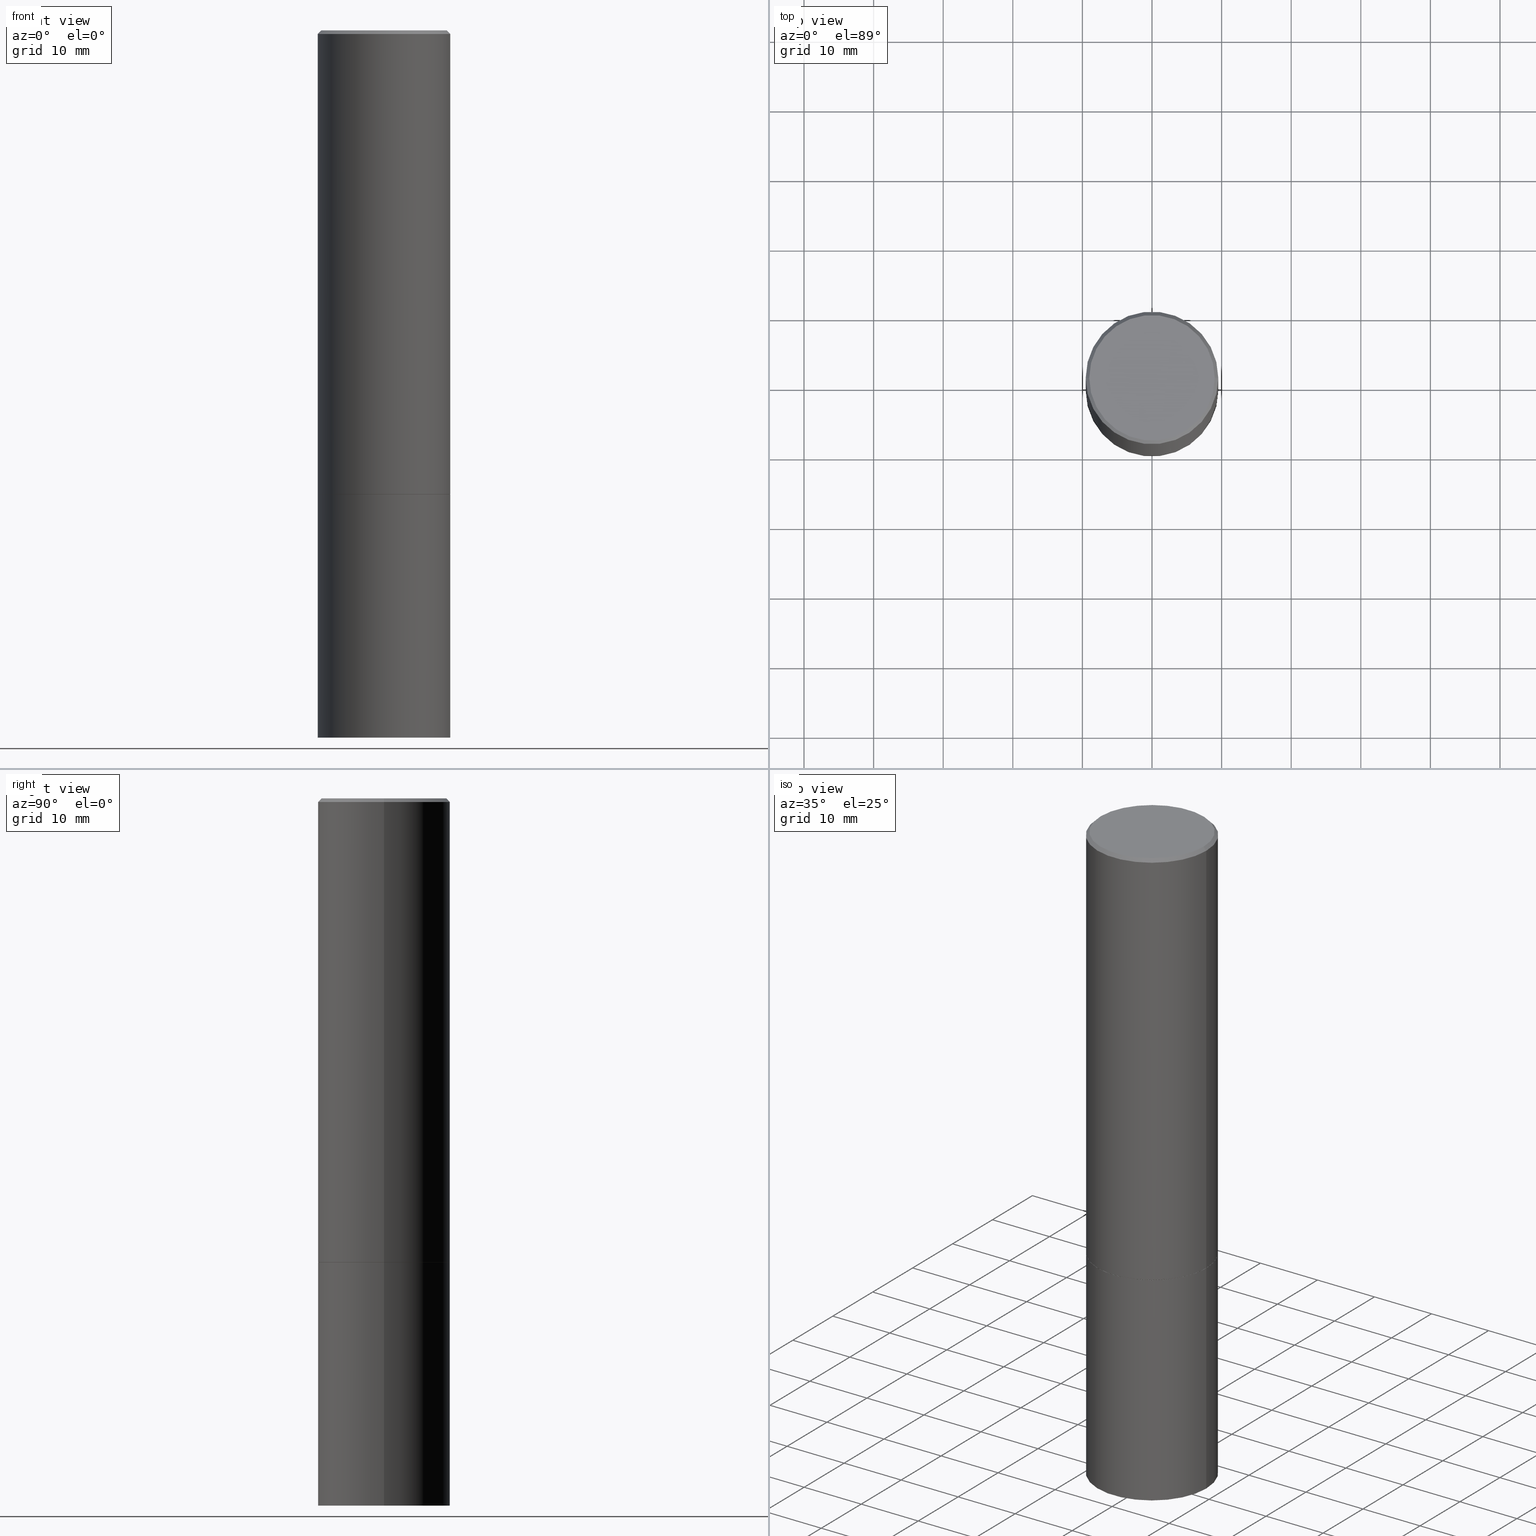
[diagram: canonical four-view strip — front | top / right | iso, engineering-drawing reading convention]
A machine part, canonical four-view strip (front | top / right | iso — engineering-drawing reading convention). The complete STEP part file that produces these views, byte-faithful:
ISO-10303-21;
HEADER;
FILE_DESCRIPTION (( 'STEP AP203' ),
    '1' );
FILE_NAME ('72984.STEP',
    '2024-02-29T06:41:33',
    ( '' ),
    ( '' ),
    'SwSTEP 2.0',
    'SolidWorks 2023',
    '' );
FILE_SCHEMA (( 'CONFIG_CONTROL_DESIGN' ));
ENDSEC;

DATA;
#1 = PERSON_AND_ORGANIZATION ( #284, #337 ) ;
#2 = AXIS2_PLACEMENT_3D ( 'NONE', #222, #251, #248 ) ;
#3 = EDGE_LOOP ( 'NONE', ( #66, #90, #326, #91 ) ) ;
#4 = VECTOR ( 'NONE', #7, 39.37007874015748143 ) ;
#5 = ORIENTED_EDGE ( 'NONE', *, *, #27, .T. ) ;
#6 = CARTESIAN_POINT ( 'NONE',  ( 6.416910147429799085E-29, -9.161647033124413605E-15, -2.624000000000000110 ) ) ;
#7 = DIRECTION ( 'NONE',  ( -2.445468806185136877E-29, 3.491481338843145188E-15, 1.000000000000000000 ) ) ;
#8 = ORIENTED_EDGE ( 'NONE', *, *, #51, .F. ) ;
#9 = SHAPE_DEFINITION_REPRESENTATION ( #25, #156 ) ;
#10 = EDGE_CURVE ( 'NONE', #213, #320, #273, .T. ) ;
#11 = ORIENTED_EDGE ( 'NONE', *, *, #357, .F. ) ;
#12 = PERSON_AND_ORGANIZATION ( #284, #337 ) ;
#13 = ORIENTED_EDGE ( 'NONE', *, *, #36, .T. ) ;
#14 = CIRCLE ( 'NONE', #211, 0.3750000000000000555 ) ;
#15 = FACE_OUTER_BOUND ( 'NONE', #171, .T. ) ;
#16 = APPROVAL_STATUS ( 'not_yet_approved' ) ;
#17 = APPLICATION_PROTOCOL_DEFINITION ( 'international standard', 'config_control_design', 1994, #354 ) ;
#18 = CARTESIAN_POINT ( 'NONE',  ( -0.3749999999999998335, 2.664535259100374514E-15, -1.844600658845588757E-29 ) ) ;
#19 =( NAMED_UNIT ( * ) PLANE_ANGLE_UNIT ( ) SI_UNIT ( $, .RADIAN. ) );
#20 = CARTESIAN_POINT ( 'NONE',  ( 6.419355616235982445E-29, -9.165138514463255034E-15, -2.624999999999999556 ) ) ;
#21 = CC_DESIGN_APPROVAL ( #203, ( #269 ) ) ;
#22 = DIRECTION ( 'NONE',  ( 1.000000000000000000, -6.982962677686266711E-15, 0.000000000000000000 ) ) ;
#23 = APPROVAL_STATUS ( 'not_yet_approved' ) ;
#24 = FACE_OUTER_BOUND ( 'NONE', #257, .T. ) ;
#25 = PRODUCT_DEFINITION_SHAPE ( 'NONE', 'NONE',  #269 ) ;
#26 = COORDINATED_UNIVERSAL_TIME_OFFSET ( 5, 0, .BEHIND. ) ;
#27 = EDGE_CURVE ( 'NONE', #194, #169, #46, .T. ) ;
#28 = LOCAL_TIME ( 1, 41, 33.00000000000000000, #26 ) ;
#29 = LINE ( 'NONE', #133, #301 ) ;
#30 = DIRECTION ( 'NONE',  ( 1.000000000000000000, -6.982962677686266711E-15, 0.000000000000000000 ) ) ;
#31 = ORIENTED_EDGE ( 'NONE', *, *, #255, .F. ) ;
#32 = CARTESIAN_POINT ( 'NONE',  ( 0.3750000000000000555, -1.658453635950493392E-14, -4.000000000000000000 ) ) ;
#33 = CARTESIAN_POINT ( 'NONE',  ( -0.3750000000000000555, -8.900996675817542197E-15, -4.000000000000000000 ) ) ;
#34 = VERTEX_POINT ( 'NONE', #265 ) ;
#35 = DIRECTION ( 'NONE',  ( -2.445468806185136597E-29, 3.491481338843145583E-15, 1.000000000000000000 ) ) ;
#36 = EDGE_CURVE ( 'NONE', #353, #83, #238, .T. ) ;
#37 = ORIENTED_EDGE ( 'NONE', *, *, #347, .T. ) ;
#38 = CARTESIAN_POINT ( 'NONE',  ( 0.000000000000000000, 0.000000000000000000, 0.000000000000000000 ) ) ;
#39 = EDGE_LOOP ( 'NONE', ( #314, #290, #135, #334 ) ) ;
#40 = AXIS2_PLACEMENT_3D ( 'NONE', #79, #208, #147 ) ;
#41 = ORIENTED_EDGE ( 'NONE', *, *, #311, .F. ) ;
#42 = FACE_OUTER_BOUND ( 'NONE', #138, .T. ) ;
#43 = ORIENTED_EDGE ( 'NONE', *, *, #27, .F. ) ;
#44 = CARTESIAN_POINT ( 'NONE',  ( -0.3549999999999995381, 2.513866563967052703E-15, 1.280553747028377567E-17 ) ) ;
#45 = DIRECTION ( 'NONE',  ( -2.445468806185136877E-29, 3.491481338843145188E-15, 1.000000000000000000 ) ) ;
#46 = CIRCLE ( 'NONE', #277, 0.3750000000000000555 ) ;
#47 = EDGE_CURVE ( 'NONE', #163, #345, #122, .T. ) ;
#48 = AXIS2_PLACEMENT_3D ( 'NONE', #6, #111, #231 ) ;
#49 = DIRECTION ( 'NONE',  ( 0.7071067811868130271, -2.468850131085038979E-15, 0.7071067811862817853 ) ) ;
#50 = CALENDAR_DATE ( 2024, 29, 2 ) ;
#51 = EDGE_CURVE ( 'NONE', #142, #351, #299, .T. ) ;
#52 = CARTESIAN_POINT ( 'NONE',  ( 9.781875224740546387E-29, -1.396592535537258233E-14, -4.000000000000000000 ) ) ;
#53 = DIRECTION ( 'NONE',  ( -1.000000000000000000, 6.982962677686265922E-15, -4.876176775795935793E-29 ) ) ;
#54 = CARTESIAN_POINT ( 'NONE',  ( 6.419355616235982445E-29, -9.165138514463255034E-15, -2.624999999999999556 ) ) ;
#55 = AXIS2_PLACEMENT_3D ( 'NONE', #361, #99, #153 ) ;
#56 = LOCAL_TIME ( 1, 41, 33.00000000000000000, #246 ) ;
#57 = EDGE_LOOP ( 'NONE', ( #8, #61, #191, #162 ) ) ;
#58 = DIRECTION ( 'NONE',  ( 0.7071067811865469066, -7.319954787623254468E-15, -0.7071067811865482389 ) ) ;
#59 = CALENDAR_DATE ( 2024, 29, 2 ) ;
#60 = ORIENTED_EDGE ( 'NONE', *, *, #342, .F. ) ;
#61 = ORIENTED_EDGE ( 'NONE', *, *, #327, .T. ) ;
#62 = CARTESIAN_POINT ( 'NONE',  ( 6.416910147429799085E-29, -9.161647033124413605E-15, -2.624000000000000110 ) ) ;
#63 = CLOSED_SHELL ( 'NONE', ( #267, #279, #228, #214 ) ) ;
#64 = APPROVAL_DATE_TIME ( #205, #274 ) ;
#65 = EDGE_LOOP ( 'NONE', ( #88, #112, #352, #264 ) ) ;
#66 = ORIENTED_EDGE ( 'NONE', *, *, #357, .T. ) ;
#67 = CARTESIAN_POINT ( 'NONE',  ( 6.419355616235982445E-29, -9.165138514463255034E-15, -2.624999999999999556 ) ) ;
#68 = ADVANCED_FACE ( 'NONE', ( #151 ), #143, .T. ) ;
#69 =( NAMED_UNIT ( * ) SI_UNIT ( $, .STERADIAN. ) SOLID_ANGLE_UNIT ( ) );
#70 = LINE ( 'NONE', #356, #80 ) ;
#71 = CLOSED_SHELL ( 'NONE', ( #78, #359, #155, #68, #160, #198, #165, #117 ) ) ;
#72 = CARTESIAN_POINT ( 'NONE',  ( 9.781875224740546387E-29, -1.396592535537258233E-14, -4.000000000000000000 ) ) ;
#73 = CC_DESIGN_PERSON_AND_ORGANIZATION_ASSIGNMENT ( #1, #225, ( #193 ) ) ;
#74 = AXIS2_PLACEMENT_3D ( 'NONE', #346, #35, #189 ) ;
#75 = LINE ( 'NONE', #362, #4 ) ;
#76 = DIRECTION ( 'NONE',  ( -2.445468806185136597E-29, 3.491481338843145583E-15, 1.000000000000000000 ) ) ;
#77 = CARTESIAN_POINT ( 'NONE',  ( 6.419355616235982445E-29, -9.165138514463255034E-15, -2.624999999999999556 ) ) ;
#78 = ADVANCED_FACE ( 'NONE', ( #15 ), #180, .T. ) ;
#79 = CARTESIAN_POINT ( 'NONE',  ( 0.000000000000000000, 0.000000000000000000, 0.000000000000000000 ) ) ;
#80 = VECTOR ( 'NONE', #242, 39.37007874015748854 ) ;
#81 = APPROVAL_PERSON_ORGANIZATION ( #121, #340, #219 ) ;
#82 = LOCAL_TIME ( 1, 41, 33.00000000000000000, #316 ) ;
#83 = VERTEX_POINT ( 'NONE', #294 ) ;
#84 = AXIS2_PLACEMENT_3D ( 'NONE', #20, #182, #119 ) ;
#85 = PERSON_AND_ORGANIZATION_ROLE ( 'classification_officer' ) ;
#86 = VECTOR ( 'NONE', #199, 39.37007874015748143 ) ;
#87 = ORIENTED_EDGE ( 'NONE', *, *, #195, .T. ) ;
#88 = ORIENTED_EDGE ( 'NONE', *, *, #327, .F. ) ;
#89 = PLANE ( 'NONE',  #322 ) ;
#90 = ORIENTED_EDGE ( 'NONE', *, *, #255, .T. ) ;
#91 = ORIENTED_EDGE ( 'NONE', *, *, #195, .F. ) ;
#92 = CIRCLE ( 'NONE', #48, 0.3750000000000000555 ) ;
#93 = LENGTH_MEASURE_WITH_UNIT ( LENGTH_MEASURE( 0.02539999999999999897 ), #149 );
#94 = DIRECTION ( 'NONE',  ( -2.445468806185136597E-29, 3.491481338843145583E-15, 1.000000000000000000 ) ) ;
#95 = DIRECTION ( 'NONE',  ( -2.445468806185136597E-29, 3.491481338843145583E-15, 1.000000000000000000 ) ) ;
#96 = DIRECTION ( 'NONE',  ( 1.000000000000000000, -6.982962677686266711E-15, 4.876231632511994349E-29 ) ) ;
#97 = LOCAL_TIME ( 1, 41, 33.00000000000000000, #167 ) ;
#98 = CARTESIAN_POINT ( 'NONE',  ( -3.131554243005659264E-46, 4.471029511141341874E-32, 1.280553747030123384E-17 ) ) ;
#99 = DIRECTION ( 'NONE',  ( 2.438088387897960049E-29, -3.491481338843145188E-15, -1.000000000000000000 ) ) ;
#100 = CC_DESIGN_DATE_AND_TIME_ASSIGNMENT ( #318, #140, ( #120 ) ) ;
#101 = APPROVAL_ROLE ( '' ) ;
#102 =( GEOMETRIC_REPRESENTATION_CONTEXT ( 3 ) GLOBAL_UNCERTAINTY_ASSIGNED_CONTEXT ( ( #237 ) ) GLOBAL_UNIT_ASSIGNED_CONTEXT ( ( #325, #19, #69 ) ) REPRESENTATION_CONTEXT ( 'NONE', 'WORKASPACE' ) );
#103 = CALENDAR_DATE ( 2024, 29, 2 ) ;
#104 = DIMENSIONAL_EXPONENTS ( 1.000000000000000000, 0.000000000000000000, 0.000000000000000000, 0.000000000000000000, 0.000000000000000000, 0.000000000000000000, 0.000000000000000000 ) ;
#105 = EDGE_CURVE ( 'NONE', #34, #353, #70, .T. ) ;
#106 = APPLICATION_CONTEXT ( 'configuration controlled 3d designs of mechanical parts and assemblies' ) ;
#107 = ORIENTED_EDGE ( 'NONE', *, *, #342, .T. ) ;
#108 = PLANE ( 'NONE',  #2 ) ;
#109 = CC_DESIGN_APPROVAL ( #274, ( #120 ) ) ;
#110 = ORIENTED_EDGE ( 'NONE', *, *, #36, .F. ) ;
#111 = DIRECTION ( 'NONE',  ( -2.445468806185136597E-29, 3.491481338843145583E-15, 1.000000000000000000 ) ) ;
#112 = ORIENTED_EDGE ( 'NONE', *, *, #186, .F. ) ;
#113 = EDGE_LOOP ( 'NONE', ( #11, #226 ) ) ;
#114 = CARTESIAN_POINT ( 'NONE',  ( 4.890937612370294178E-31, -6.982962677686321191E-17, -0.02000000000000008715 ) ) ;
#115 = CC_DESIGN_APPROVAL ( #340, ( #193 ) ) ;
#116 = DIRECTION ( 'NONE',  ( -1.000000000000000000, 6.982962677686266711E-15, 0.000000000000000000 ) ) ;
#117 = ADVANCED_FACE ( 'NONE', ( #268 ), #172, .F. ) ;
#118 = CIRCLE ( 'NONE', #166, 0.3750000000000000555 ) ;
#119 = DIRECTION ( 'NONE',  ( 1.000000000000000000, -6.982962677686265922E-15, 4.876176775795935793E-29 ) ) ;
#120 = SECURITY_CLASSIFICATION ( '', '', #343 ) ;
#121 = PERSON_AND_ORGANIZATION ( #284, #337 ) ;
#122 = LINE ( 'NONE', #234, #247 ) ;
#123 = CC_DESIGN_DATE_AND_TIME_ASSIGNMENT ( #218, #127, ( #269 ) ) ;
#124 = EDGE_CURVE ( 'NONE', #351, #83, #298, .T. ) ;
#125 = CIRCLE ( 'NONE', #154, 0.3549999999999995381 ) ;
#126 = CIRCLE ( 'NONE', #363, 0.3750000000000000555 ) ;
#127 = DATE_TIME_ROLE ( 'creation_date' ) ;
#128 = COORDINATED_UNIVERSAL_TIME_OFFSET ( 5, 0, .BEHIND. ) ;
#129 = CARTESIAN_POINT ( 'NONE',  ( 4.890937612370294178E-31, -6.982962677686321191E-17, -0.02000000000000008715 ) ) ;
#130 = CC_DESIGN_PERSON_AND_ORGANIZATION_ASSIGNMENT ( #216, #181, ( #269 ) ) ;
#131 = AXIS2_PLACEMENT_3D ( 'NONE', #129, #249, #184 ) ;
#132 = PERSON_AND_ORGANIZATION ( #284, #337 ) ;
#133 = CARTESIAN_POINT ( 'NONE',  ( 0.3749999999999998335, -2.618611004132348439E-15, 1.828566290923475082E-29 ) ) ;
#134 = ORIENTED_EDGE ( 'NONE', *, *, #51, .T. ) ;
#135 = ORIENTED_EDGE ( 'NONE', *, *, #47, .T. ) ;
#136 = CARTESIAN_POINT ( 'NONE',  ( 0.3749999999999996114, -2.642516375941185268E-15, -0.02000000000000008715 ) ) ;
#137 = APPROVAL_PERSON_ORGANIZATION ( #185, #203, #101 ) ;
#138 = EDGE_LOOP ( 'NONE', ( #110, #37, #254, #223 ) ) ;
#139 = DIRECTION ( 'NONE',  ( -2.445468806185136597E-29, 3.491481338843145583E-15, 1.000000000000000000 ) ) ;
#140 = DATE_TIME_ROLE ( 'classification_date' ) ;
#141 = ORIENTED_EDGE ( 'NONE', *, *, #186, .T. ) ;
#142 = VERTEX_POINT ( 'NONE', #174 ) ;
#143 = CONICAL_SURFACE ( 'NONE', #319, 0.3749999999999996114, 0.7853981633974473908 ) ;
#144 = APPROVAL_ROLE ( '' ) ;
#145 = DIRECTION ( 'NONE',  ( 1.000000000000000000, 0.000000000000000000, 0.000000000000000000 ) ) ;
#146 = DIRECTION ( 'NONE',  ( 1.000000000000000000, -6.982962677686266711E-15, 0.000000000000000000 ) ) ;
#147 = DIRECTION ( 'NONE',  ( 1.000000000000000000, -6.982962677686265922E-15, 4.876176775795935793E-29 ) ) ;
#148 = DIRECTION ( 'NONE',  ( -2.445468806185136597E-29, 3.491481338843145583E-15, 1.000000000000000000 ) ) ;
#149 =( LENGTH_UNIT ( ) NAMED_UNIT ( * ) SI_UNIT ( $, .METRE. ) );
#150 = PLANE ( 'NONE',  #84 ) ;
#151 = FACE_OUTER_BOUND ( 'NONE', #65, .T. ) ;
#152 = DIRECTION ( 'NONE',  ( -2.445468806185136597E-29, 3.491481338843145583E-15, 1.000000000000000000 ) ) ;
#153 = DIRECTION ( 'NONE',  ( -1.000000000000000000, 6.982962677686265922E-15, -4.876176775795935793E-29 ) ) ;
#154 = AXIS2_PLACEMENT_3D ( 'NONE', #98, #360, #338 ) ;
#155 = ADVANCED_FACE ( 'NONE', ( #177 ), #190, .T. ) ;
#156 = ADVANCED_BREP_SHAPE_REPRESENTATION ( '72984', ( #200, #350, #183 ), #102 ) ;
#157 = FACE_OUTER_BOUND ( 'NONE', #3, .T. ) ;
#158 = DIRECTION ( 'NONE',  ( -2.445468806185136597E-29, 3.491481338843145583E-15, 1.000000000000000000 ) ) ;
#159 = APPROVAL_PERSON_ORGANIZATION ( #12, #274, #144 ) ;
#160 = ADVANCED_FACE ( 'NONE', ( #42 ), #235, .T. ) ;
#161 = ORIENTED_EDGE ( 'NONE', *, *, #47, .F. ) ;
#162 = ORIENTED_EDGE ( 'NONE', *, *, #124, .F. ) ;
#163 = VERTEX_POINT ( 'NONE', #212 ) ;
#164 = LINE ( 'NONE', #227, #86 ) ;
#165 = ADVANCED_FACE ( 'NONE', ( #297 ), #150, .F. ) ;
#166 = AXIS2_PLACEMENT_3D ( 'NONE', #324, #333, #309 ) ;
#167 = COORDINATED_UNIVERSAL_TIME_OFFSET ( 5, 0, .BEHIND. ) ;
#168 = LOCAL_TIME ( 1, 41, 33.00000000000000000, #128 ) ;
#169 = VERTEX_POINT ( 'NONE', #240 ) ;
#170 = CALENDAR_DATE ( 2024, 29, 2 ) ;
#171 = EDGE_LOOP ( 'NONE', ( #323, #230, #60, #161 ) ) ;
#172 = PLANE ( 'NONE',  #55 ) ;
#173 = MECHANICAL_CONTEXT ( 'NONE', #354, 'mechanical' ) ;
#174 = CARTESIAN_POINT ( 'NONE',  ( 0.3549999999999995381, -2.538996582575037893E-15, 1.280553747031877983E-17 ) ) ;
#175 = CARTESIAN_POINT ( 'NONE',  ( 0.3749999999999996114, -2.642516375941185268E-15, -0.02000000000000008715 ) ) ;
#176 = PERSON_AND_ORGANIZATION_ROLE ( 'design_owner' ) ;
#177 = FACE_OUTER_BOUND ( 'NONE', #57, .T. ) ;
#178 = FACE_OUTER_BOUND ( 'NONE', #202, .T. ) ;
#179 = DIRECTION ( 'NONE',  ( 2.445468806185136597E-29, -3.491481338843145583E-15, -1.000000000000000000 ) ) ;
#180 = CONICAL_SURFACE ( 'NONE', #220, 0.3739999999999999991, 0.7853981633978239785 ) ;
#181 = PERSON_AND_ORGANIZATION_ROLE ( 'creator' ) ;
#182 = DIRECTION ( 'NONE',  ( -2.438088387897960049E-29, 3.491481338843145188E-15, 1.000000000000000000 ) ) ;
#183 = AXIS2_PLACEMENT_3D ( 'NONE', #38, #210, #145 ) ;
#184 = DIRECTION ( 'NONE',  ( 1.000000000000000000, -6.982962677686266711E-15, 0.000000000000000000 ) ) ;
#185 = PERSON_AND_ORGANIZATION ( #284, #337 ) ;
#186 = EDGE_CURVE ( 'NONE', #351, #142, #125, .T. ) ;
#187 = CONICAL_SURFACE ( 'NONE', #285, 0.3739999999999999991, 0.7853981633978239785 ) ;
#188 = DIRECTION ( 'NONE',  ( 1.000000000000000000, -6.982962677686265922E-15, 4.876176775795935793E-29 ) ) ;
#189 = DIRECTION ( 'NONE',  ( 1.000000000000000000, -6.982962677686265922E-15, 4.876176775795935793E-29 ) ) ;
#190 = CONICAL_SURFACE ( 'NONE', #239, 0.3749999999999996114, 0.7853981633974473908 ) ;
#191 = ORIENTED_EDGE ( 'NONE', *, *, #365, .T. ) ;
#192 = CARTESIAN_POINT ( 'NONE',  ( 6.419355616235982445E-29, -9.165138514463255034E-15, -2.624999999999999556 ) ) ;
#193 = PRODUCT_DEFINITION_FORMATION_WITH_SPECIFIED_SOURCE ( 'ANY', '', #310, .NOT_KNOWN. ) ;
#194 = VERTEX_POINT ( 'NONE', #229 ) ;
#195 = EDGE_CURVE ( 'NONE', #320, #169, #75, .T. ) ;
#196 = ORIENTED_EDGE ( 'NONE', *, *, #365, .F. ) ;
#197 = LINE ( 'NONE', #136, #293 ) ;
#198 = ADVANCED_FACE ( 'NONE', ( #358 ), #187, .T. ) ;
#199 = DIRECTION ( 'NONE',  ( -2.445468806185136877E-29, 3.491481338843145188E-15, 1.000000000000000000 ) ) ;
#200 = MANIFOLD_SOLID_BREP ( 'Body-Move/Copy2[1]', #63 ) ;
#201 = CIRCLE ( 'NONE', #261, 0.3749999999999996114 ) ;
#202 = EDGE_LOOP ( 'NONE', ( #31, #253, #87, #43 ) ) ;
#203 = APPROVAL ( #23, 'UNSPECIFIED' ) ;
#204 = DIRECTION ( 'NONE',  ( 1.000000000000000000, -6.982962677686265133E-15, 0.000000000000000000 ) ) ;
#205 = DATE_AND_TIME ( #170, #97 ) ;
#206 = DESIGN_CONTEXT ( 'detailed design', #106, 'design' ) ;
#207 = DIRECTION ( 'NONE',  ( -2.445468806185136597E-29, 3.491481338843145583E-15, 1.000000000000000000 ) ) ;
#208 = DIRECTION ( 'NONE',  ( -2.445468806185136597E-29, 3.491481338843145583E-15, 1.000000000000000000 ) ) ;
#209 = DIRECTION ( 'NONE',  ( -2.445468806185136597E-29, 3.491481338843145583E-15, 1.000000000000000000 ) ) ;
#210 = DIRECTION ( 'NONE',  ( 0.000000000000000000, 0.000000000000000000, 1.000000000000000000 ) ) ;
#211 = AXIS2_PLACEMENT_3D ( 'NONE', #62, #209, #329 ) ;
#212 = CARTESIAN_POINT ( 'NONE',  ( 0.3739999999999999991, -1.177676655591791904E-14, -2.624999999999999556 ) ) ;
#213 = VERTEX_POINT ( 'NONE', #33 ) ;
#214 = ADVANCED_FACE ( 'NONE', ( #178 ), #305, .T. ) ;
#215 = CARTESIAN_POINT ( 'NONE',  ( -0.3749999999999996114, 2.548781377355483957E-15, -0.02000000000000008715 ) ) ;
#216 = PERSON_AND_ORGANIZATION ( #284, #337 ) ;
#217 = EDGE_CURVE ( 'NONE', #169, #194, #118, .T. ) ;
#218 = DATE_AND_TIME ( #103, #28 ) ;
#219 = APPROVAL_ROLE ( '' ) ;
#220 = AXIS2_PLACEMENT_3D ( 'NONE', #77, #94, #204 ) ;
#221 = PERSON_AND_ORGANIZATION_ROLE ( 'design_supplier' ) ;
#222 = CARTESIAN_POINT ( 'NONE',  ( 2.618611004132414309E-15, 0.3749999999999908962, -2.625000000000000444 ) ) ;
#223 = ORIENTED_EDGE ( 'NONE', *, *, #272, .F. ) ;
#224 = DIRECTION ( 'NONE',  ( 2.438088387897960049E-29, -3.491481338843145188E-15, -1.000000000000000000 ) ) ;
#225 = PERSON_AND_ORGANIZATION_ROLE ( 'creator' ) ;
#226 = ORIENTED_EDGE ( 'NONE', *, *, #10, .F. ) ;
#227 = CARTESIAN_POINT ( 'NONE',  ( -0.3750000000000000555, 2.664535259100376091E-15, -1.844600658845589598E-29 ) ) ;
#228 = ADVANCED_FACE ( 'NONE', ( #287 ), #108, .F. ) ;
#229 = CARTESIAN_POINT ( 'NONE',  ( -0.3750000000000000555, -8.900996675817542197E-15, -2.624999999999999556 ) ) ;
#230 = ORIENTED_EDGE ( 'NONE', *, *, #105, .T. ) ;
#231 = DIRECTION ( 'NONE',  ( 1.000000000000000000, -6.982962677686266711E-15, 0.000000000000000000 ) ) ;
#232 = EDGE_LOOP ( 'NONE', ( #141, #134 ) ) ;
#233 = PRODUCT_RELATED_PRODUCT_CATEGORY ( 'detail', '', ( #310 ) ) ;
#234 = CARTESIAN_POINT ( 'NONE',  ( 0.3739999999999999991, -1.177676655591791904E-14, -2.624999999999999556 ) ) ;
#235 = CYLINDRICAL_SURFACE ( 'NONE', #40, 0.3749999999999998335 ) ;
#236 = CC_DESIGN_PERSON_AND_ORGANIZATION_ASSIGNMENT ( #348, #85, ( #120 ) ) ;
#237 = UNCERTAINTY_MEASURE_WITH_UNIT (LENGTH_MEASURE( 1.000000000000000082E-05 ), #325, 'distance_accuracy_value', 'NONE');
#238 = LINE ( 'NONE', #18, #330 ) ;
#239 = AXIS2_PLACEMENT_3D ( 'NONE', #114, #263, #116 ) ;
#240 = CARTESIAN_POINT ( 'NONE',  ( 0.3750000000000000555, -1.178374951859560505E-14, -2.624999999999999556 ) ) ;
#241 = DATE_AND_TIME ( #243, #56 ) ;
#242 = DIRECTION ( 'NONE',  ( -0.7071067811868130271, 7.493145998871311837E-15, 0.7071067811862817853 ) ) ;
#243 = CALENDAR_DATE ( 2024, 29, 2 ) ;
#244 = CYLINDRICAL_SURFACE ( 'NONE', #250, 0.3749999999999998335 ) ;
#245 = AXIS2_PLACEMENT_3D ( 'NONE', #54, #158, #278 ) ;
#246 = COORDINATED_UNIVERSAL_TIME_OFFSET ( 5, 0, .BEHIND. ) ;
#247 = VECTOR ( 'NONE', #49, 39.37007874015748854 ) ;
#248 = DIRECTION ( 'NONE',  ( -1.000000000000000000, 6.982962677686265922E-15, -4.876176775795935793E-29 ) ) ;
#249 = DIRECTION ( 'NONE',  ( -2.445468806185136597E-29, 3.491481338843145583E-15, 1.000000000000000000 ) ) ;
#250 = AXIS2_PLACEMENT_3D ( 'NONE', #364, #275, #188 ) ;
#251 = DIRECTION ( 'NONE',  ( 2.438088387897960049E-29, -3.491481338843145188E-15, -1.000000000000000000 ) ) ;
#252 = CARTESIAN_POINT ( 'NONE',  ( 0.000000000000000000, 0.000000000000000000, 0.000000000000000000 ) ) ;
#253 = ORIENTED_EDGE ( 'NONE', *, *, #10, .T. ) ;
#254 = ORIENTED_EDGE ( 'NONE', *, *, #311, .T. ) ;
#255 = EDGE_CURVE ( 'NONE', #213, #194, #164, .T. ) ;
#256 = CIRCLE ( 'NONE', #131, 0.3749999999999996114 ) ;
#257 = EDGE_LOOP ( 'NONE', ( #107, #13, #196, #41 ) ) ;
#258 = DIRECTION ( 'NONE',  ( -2.445468806185136877E-29, 3.491481338843145188E-15, 1.000000000000000000 ) ) ;
#259 = ORIENTED_EDGE ( 'NONE', *, *, #321, .F. ) ;
#260 = VECTOR ( 'NONE', #291, 39.37007874015748143 ) ;
#261 = AXIS2_PLACEMENT_3D ( 'NONE', #344, #281, #30 ) ;
#262 = CC_DESIGN_SECURITY_CLASSIFICATION ( #120, ( #193 ) ) ;
#263 = DIRECTION ( 'NONE',  ( 2.445468806185136597E-29, -3.491481338843145583E-15, -1.000000000000000000 ) ) ;
#264 = ORIENTED_EDGE ( 'NONE', *, *, #272, .T. ) ;
#265 = CARTESIAN_POINT ( 'NONE',  ( -0.3739999999999999991, -6.502410228372258732E-15, -2.624999999999999556 ) ) ;
#266 = AXIS2_PLACEMENT_3D ( 'NONE', #72, #302, #22 ) ;
#267 = ADVANCED_FACE ( 'NONE', ( #157 ), #283, .T. ) ;
#268 = FACE_OUTER_BOUND ( 'NONE', #232, .T. ) ;
#269 = PRODUCT_DEFINITION ( 'UNKNOWN', '', #193, #206 ) ;
#270 = CARTESIAN_POINT ( 'NONE',  ( 4.890937612370294178E-31, -6.982962677686321191E-17, -0.02000000000000008715 ) ) ;
#271 = DATE_AND_TIME ( #50, #168 ) ;
#272 = EDGE_CURVE ( 'NONE', #83, #349, #201, .T. ) ;
#273 = CIRCLE ( 'NONE', #266, 0.3750000000000000555 ) ;
#274 = APPROVAL ( #16, 'UNSPECIFIED' ) ;
#275 = DIRECTION ( 'NONE',  ( -2.445468806185136597E-29, 3.491481338843145583E-15, 1.000000000000000000 ) ) ;
#276 = FACE_OUTER_BOUND ( 'NONE', #113, .T. ) ;
#277 = AXIS2_PLACEMENT_3D ( 'NONE', #332, #95, #146 ) ;
#278 = DIRECTION ( 'NONE',  ( 1.000000000000000000, -6.982962677686265133E-15, 0.000000000000000000 ) ) ;
#279 = ADVANCED_FACE ( 'NONE', ( #276 ), #89, .T. ) ;
#280 = EDGE_LOOP ( 'NONE', ( #259, #289 ) ) ;
#281 = DIRECTION ( 'NONE',  ( -2.445468806185136597E-29, 3.491481338843145583E-15, 1.000000000000000000 ) ) ;
#282 = EDGE_LOOP ( 'NONE', ( #286, #5 ) ) ;
#283 = CYLINDRICAL_SURFACE ( 'NONE', #74, 0.3750000000000000555 ) ;
#284 = PERSON ( 'UNSPECIFIED', 'UNSPECIFIED', 'UNSPECIFIED', ('UNSPECIFIED'), ('UNSPECIFIED'), ('UNSPECIFIED') ) ;
#285 = AXIS2_PLACEMENT_3D ( 'NONE', #67, #148, #312 ) ;
#286 = ORIENTED_EDGE ( 'NONE', *, *, #217, .T. ) ;
#287 = FACE_OUTER_BOUND ( 'NONE', #282, .T. ) ;
#288 = AXIS2_PLACEMENT_3D ( 'NONE', #192, #139, #315 ) ;
#289 = ORIENTED_EDGE ( 'NONE', *, *, #295, .F. ) ;
#290 = ORIENTED_EDGE ( 'NONE', *, *, #295, .T. ) ;
#291 = DIRECTION ( 'NONE',  ( -0.7071067811865469066, 2.468850131082249961E-15, -0.7071067811865482389 ) ) ;
#292 = AXIS2_PLACEMENT_3D ( 'NONE', #335, #76, #96 ) ;
#293 = VECTOR ( 'NONE', #58, 39.37007874015748143 ) ;
#294 = CARTESIAN_POINT ( 'NONE',  ( -0.3749999999999996114, 2.548781377355483957E-15, -0.02000000000000008715 ) ) ;
#295 = EDGE_CURVE ( 'NONE', #34, #163, #308, .T. ) ;
#296 = APPLICATION_PROTOCOL_DEFINITION ( 'international standard', 'config_control_design', 1994, #106 ) ;
#297 = FACE_OUTER_BOUND ( 'NONE', #280, .T. ) ;
#298 = LINE ( 'NONE', #215, #260 ) ;
#299 = CIRCLE ( 'NONE', #292, 0.3549999999999995381 ) ;
#300 = APPROVAL_DATE_TIME ( #241, #340 ) ;
#301 = VECTOR ( 'NONE', #258, 39.37007874015748143 ) ;
#302 = DIRECTION ( 'NONE',  ( -2.445468806185136597E-29, 3.491481338843145583E-15, 1.000000000000000000 ) ) ;
#303 = DIRECTION ( 'NONE',  ( 1.000000000000000000, -6.982962677686266711E-15, 0.000000000000000000 ) ) ;
#304 = CC_DESIGN_PERSON_AND_ORGANIZATION_ASSIGNMENT ( #331, #176, ( #310 ) ) ;
#305 = CYLINDRICAL_SURFACE ( 'NONE', #341, 0.3750000000000000555 ) ;
#306 = APPROVAL_DATE_TIME ( #271, #203 ) ;
#307 = CC_DESIGN_PERSON_AND_ORGANIZATION_ASSIGNMENT ( #132, #221, ( #193 ) ) ;
#308 = CIRCLE ( 'NONE', #245, 0.3739999999999999991 ) ;
#309 = DIRECTION ( 'NONE',  ( 1.000000000000000000, -6.982962677686266711E-15, 0.000000000000000000 ) ) ;
#310 = PRODUCT ( '72984', '72984', '', ( #173 ) ) ;
#311 = EDGE_CURVE ( 'NONE', #345, #349, #29, .T. ) ;
#312 = DIRECTION ( 'NONE',  ( 1.000000000000000000, -6.982962677686265133E-15, 0.000000000000000000 ) ) ;
#313 = CARTESIAN_POINT ( 'NONE',  ( 2.618611004132448230E-15, 0.3749999999999861222, -4.000000000000000888 ) ) ;
#314 = ORIENTED_EDGE ( 'NONE', *, *, #105, .F. ) ;
#315 = DIRECTION ( 'NONE',  ( 1.000000000000000000, -6.982962677686265133E-15, 0.000000000000000000 ) ) ;
#316 = COORDINATED_UNIVERSAL_TIME_OFFSET ( 5, 0, .BEHIND. ) ;
#317 = CARTESIAN_POINT ( 'NONE',  ( 0.3750000000000000555, -1.178025803725676520E-14, -2.624000000000000110 ) ) ;
#318 = DATE_AND_TIME ( #59, #82 ) ;
#319 = AXIS2_PLACEMENT_3D ( 'NONE', #270, #179, #328 ) ;
#320 = VERTEX_POINT ( 'NONE', #32 ) ;
#321 = EDGE_CURVE ( 'NONE', #163, #34, #355, .T. ) ;
#322 = AXIS2_PLACEMENT_3D ( 'NONE', #313, #224, #53 ) ;
#323 = ORIENTED_EDGE ( 'NONE', *, *, #321, .T. ) ;
#324 = CARTESIAN_POINT ( 'NONE',  ( 6.419355616235982445E-29, -9.165138514463255034E-15, -2.624999999999999556 ) ) ;
#325 =( CONVERSION_BASED_UNIT ( 'INCH', #93 ) LENGTH_UNIT ( ) NAMED_UNIT ( #104 ) );
#326 = ORIENTED_EDGE ( 'NONE', *, *, #217, .F. ) ;
#327 = EDGE_CURVE ( 'NONE', #142, #349, #197, .T. ) ;
#328 = DIRECTION ( 'NONE',  ( -1.000000000000000000, 6.982962677686266711E-15, 0.000000000000000000 ) ) ;
#329 = DIRECTION ( 'NONE',  ( 1.000000000000000000, -6.982962677686266711E-15, 0.000000000000000000 ) ) ;
#330 = VECTOR ( 'NONE', #45, 39.37007874015748143 ) ;
#331 = PERSON_AND_ORGANIZATION ( #284, #337 ) ;
#332 = CARTESIAN_POINT ( 'NONE',  ( 6.419355616235982445E-29, -9.165138514463255034E-15, -2.624999999999999556 ) ) ;
#333 = DIRECTION ( 'NONE',  ( -2.445468806185136597E-29, 3.491481338843145583E-15, 1.000000000000000000 ) ) ;
#334 = ORIENTED_EDGE ( 'NONE', *, *, #347, .F. ) ;
#335 = CARTESIAN_POINT ( 'NONE',  ( -3.131554243005659264E-46, 4.471029511141341874E-32, 1.280553747030123384E-17 ) ) ;
#336 = DIRECTION ( 'NONE',  ( 1.000000000000000000, -6.982962677686265922E-15, 4.876176775795935793E-29 ) ) ;
#337 = ORGANIZATION ( 'UNSPECIFIED', 'UNSPECIFIED', '' ) ;
#338 = DIRECTION ( 'NONE',  ( 1.000000000000000000, -6.982962677686266711E-15, 4.876231632511994349E-29 ) ) ;
#339 = CARTESIAN_POINT ( 'NONE',  ( -0.3749999999999999445, -1.951203070850261571E-15, -2.624000000000000110 ) ) ;
#340 = APPROVAL ( #366, 'UNSPECIFIED' ) ;
#341 = AXIS2_PLACEMENT_3D ( 'NONE', #252, #207, #336 ) ;
#342 = EDGE_CURVE ( 'NONE', #345, #353, #92, .T. ) ;
#343 = SECURITY_CLASSIFICATION_LEVEL ( 'unclassified' ) ;
#344 = CARTESIAN_POINT ( 'NONE',  ( 4.890937612370294178E-31, -6.982962677686321191E-17, -0.02000000000000008715 ) ) ;
#345 = VERTEX_POINT ( 'NONE', #317 ) ;
#346 = CARTESIAN_POINT ( 'NONE',  ( 0.000000000000000000, 0.000000000000000000, 0.000000000000000000 ) ) ;
#347 = EDGE_CURVE ( 'NONE', #353, #345, #14, .T. ) ;
#348 = PERSON_AND_ORGANIZATION ( #284, #337 ) ;
#349 = VERTEX_POINT ( 'NONE', #175 ) ;
#350 = MANIFOLD_SOLID_BREP ( 'Body-Move/Copy2[2]', #71 ) ;
#351 = VERTEX_POINT ( 'NONE', #44 ) ;
#352 = ORIENTED_EDGE ( 'NONE', *, *, #124, .T. ) ;
#353 = VERTEX_POINT ( 'NONE', #339 ) ;
#354 = APPLICATION_CONTEXT ( 'configuration controlled 3d designs of mechanical parts and assemblies' ) ;
#355 = CIRCLE ( 'NONE', #288, 0.3739999999999999991 ) ;
#356 = CARTESIAN_POINT ( 'NONE',  ( -0.3739999999999999991, -6.507708682720480345E-15, -2.624999999999999556 ) ) ;
#357 = EDGE_CURVE ( 'NONE', #320, #213, #126, .T. ) ;
#358 = FACE_OUTER_BOUND ( 'NONE', #39, .T. ) ;
#359 = ADVANCED_FACE ( 'NONE', ( #24 ), #244, .T. ) ;
#360 = DIRECTION ( 'NONE',  ( -2.445468806185136597E-29, 3.491481338843145583E-15, 1.000000000000000000 ) ) ;
#361 = CARTESIAN_POINT ( 'NONE',  ( 2.478951750578621448E-15, 0.3549999999999995381, -1.233073106554164423E-15 ) ) ;
#362 = CARTESIAN_POINT ( 'NONE',  ( 0.3750000000000000555, -2.618611004132350016E-15, 1.828566290923476203E-29 ) ) ;
#363 = AXIS2_PLACEMENT_3D ( 'NONE', #52, #152, #303 ) ;
#364 = CARTESIAN_POINT ( 'NONE',  ( 0.000000000000000000, 0.000000000000000000, 0.000000000000000000 ) ) ;
#365 = EDGE_CURVE ( 'NONE', #349, #83, #256, .T. ) ;
#366 = APPROVAL_STATUS ( 'not_yet_approved' ) ;
ENDSEC;
END-ISO-10303-21;
